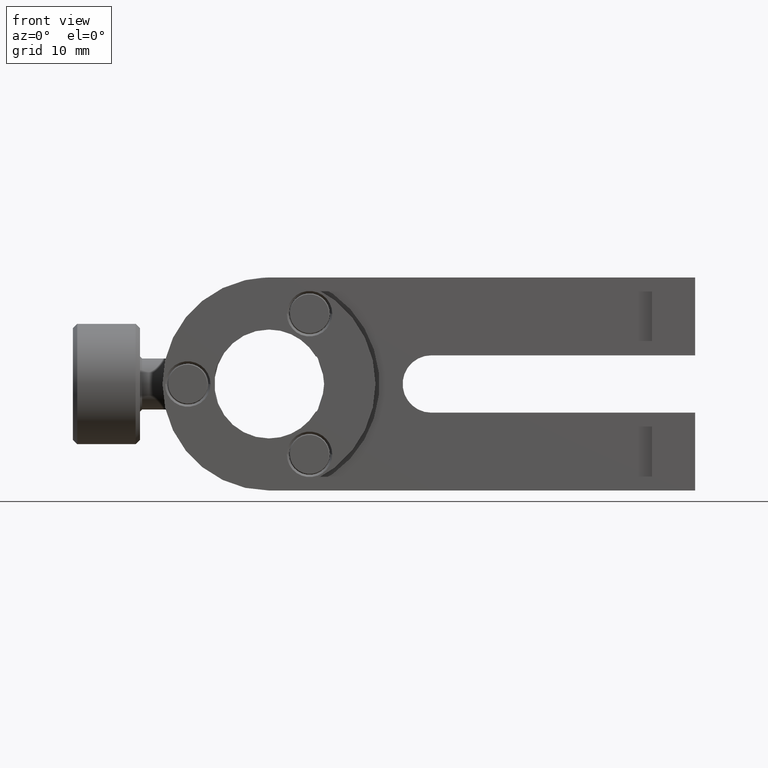
[diagram: clean part render]
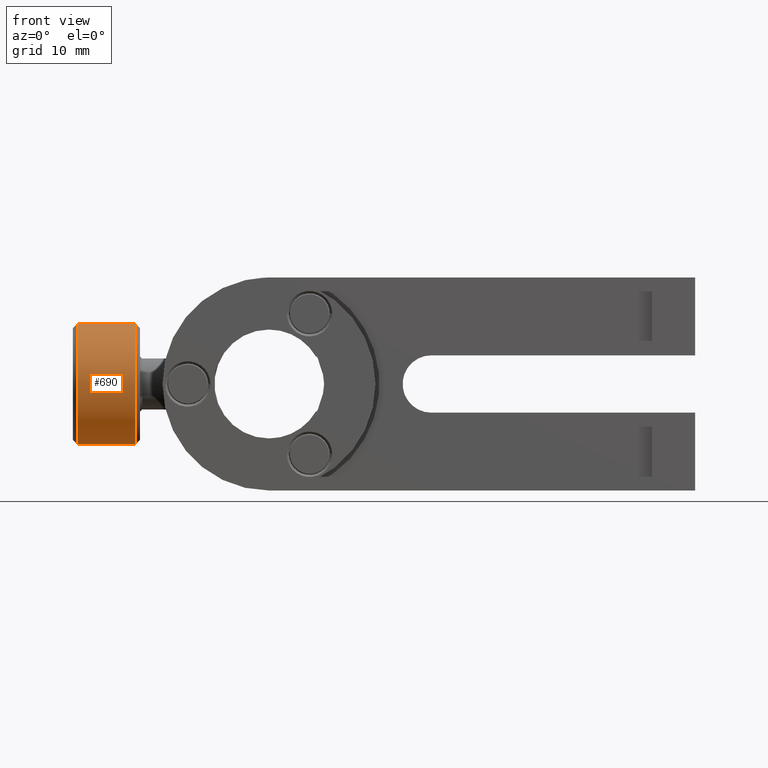
[diagram: same view with one face highlighted and labeled with its STEP entity id]
A machine part, front view. The second image highlights one B-rep face of the part: STEP entity #690.
In plain terms, the highlighted cylindrical surface (partial cylindrical patch) has radius 7.0592 mm, axis along (-1, -0, -0).
Its self-contained STEP definition (entity closure, byte-faithful):
#74 = DIRECTION ( 'NONE',  ( -1.000000000000000000, -0.0000000000000000000, -0.0000000000000000000 ) ) ;
#105 = CARTESIAN_POINT ( 'NONE',  ( -18.36862634088824800, 23.30447020906446900, 0.0000000000000000000 ) ) ;
#119 = CARTESIAN_POINT ( 'NONE',  ( -22.21612422020027800, 23.30447020906446900, -7.059201897910382300 ) ) ;
#165 = EDGE_CURVE ( 'NONE', #1361, #707, #2082, .T. ) ;
#268 = ORIENTED_EDGE ( 'NONE', *, *, #3085, .F. ) ;
#326 = AXIS2_PLACEMENT_3D ( 'NONE', #1933, #2507, #1072 ) ;
#400 = EDGE_CURVE ( 'NONE', #1361, #897, #2352, .T. ) ;
#486 = EDGE_LOOP ( 'NONE', ( #2400, #1882, #2780, #268 ) ) ;
#618 = AXIS2_PLACEMENT_3D ( 'NONE', #105, #2661, #1476 ) ;
#690 = ADVANCED_FACE ( 'NONE', ( #849 ), #2829, .T. ) ;
#707 = VERTEX_POINT ( 'NONE', #940 ) ;
#849 = FACE_OUTER_BOUND ( 'NONE', #486, .T. ) ;
#897 = VERTEX_POINT ( 'NONE', #3578 ) ;
#940 = CARTESIAN_POINT ( 'NONE',  ( -18.36862634088824800, 23.30447020906446900, -7.059201897910382300 ) ) ;
#986 = CARTESIAN_POINT ( 'NONE',  ( -18.36862634088824800, 23.30447020906446900, 7.059201897910382300 ) ) ;
#1045 = LINE ( 'NONE', #1929, #2473 ) ;
#1072 = DIRECTION ( 'NONE',  ( 0.0000000000000000000, 0.0000000000000000000, 1.000000000000000000 ) ) ;
#1361 = VERTEX_POINT ( 'NONE', #2616 ) ;
#1476 = DIRECTION ( 'NONE',  ( 0.0000000000000000000, 0.0000000000000000000, 1.000000000000000000 ) ) ;
#1505 = VERTEX_POINT ( 'NONE', #986 ) ;
#1540 = DIRECTION ( 'NONE',  ( -1.000000000000000000, -0.0000000000000000000, -0.0000000000000000000 ) ) ;
#1882 = ORIENTED_EDGE ( 'NONE', *, *, #400, .T. ) ;
#1929 = CARTESIAN_POINT ( 'NONE',  ( -22.21612422020027800, 23.30447020906446900, 7.059201897910382300 ) ) ;
#1933 = CARTESIAN_POINT ( 'NONE',  ( -11.51062634088825100, 23.30447020906446900, 0.0000000000000000000 ) ) ;
#1996 = VECTOR ( 'NONE', #1540, 1000.000000000000000 ) ;
#2082 = LINE ( 'NONE', #119, #1996 ) ;
#2344 = CARTESIAN_POINT ( 'NONE',  ( -22.21612422020027800, 23.30447020906446900, 0.0000000000000000000 ) ) ;
#2352 = CIRCLE ( 'NONE', #326, 7.059201897910382300 ) ;
#2400 = ORIENTED_EDGE ( 'NONE', *, *, #165, .F. ) ;
#2473 = VECTOR ( 'NONE', #3574, 1000.000000000000000 ) ;
#2507 = DIRECTION ( 'NONE',  ( -1.000000000000000000, -0.0000000000000000000, -0.0000000000000000000 ) ) ;
#2612 = EDGE_CURVE ( 'NONE', #897, #1505, #1045, .T. ) ;
#2616 = CARTESIAN_POINT ( 'NONE',  ( -11.51062634088825100, 23.30447020906446900, -7.059201897910382300 ) ) ;
#2661 = DIRECTION ( 'NONE',  ( -1.000000000000000000, -0.0000000000000000000, -0.0000000000000000000 ) ) ;
#2780 = ORIENTED_EDGE ( 'NONE', *, *, #2612, .T. ) ;
#2829 = CYLINDRICAL_SURFACE ( 'NONE', #3139, 7.059201897910382300 ) ;
#2849 = CIRCLE ( 'NONE', #618, 7.059201897910382300 ) ;
#3085 = EDGE_CURVE ( 'NONE', #707, #1505, #2849, .T. ) ;
#3139 = AXIS2_PLACEMENT_3D ( 'NONE', #2344, #74, #3193 ) ;
#3193 = DIRECTION ( 'NONE',  ( 0.0000000000000000000, 0.0000000000000000000, 1.000000000000000000 ) ) ;
#3574 = DIRECTION ( 'NONE',  ( -1.000000000000000000, -0.0000000000000000000, -0.0000000000000000000 ) ) ;
#3578 = CARTESIAN_POINT ( 'NONE',  ( -11.51062634088825100, 23.30447020906446900, 7.059201897910382300 ) ) ;